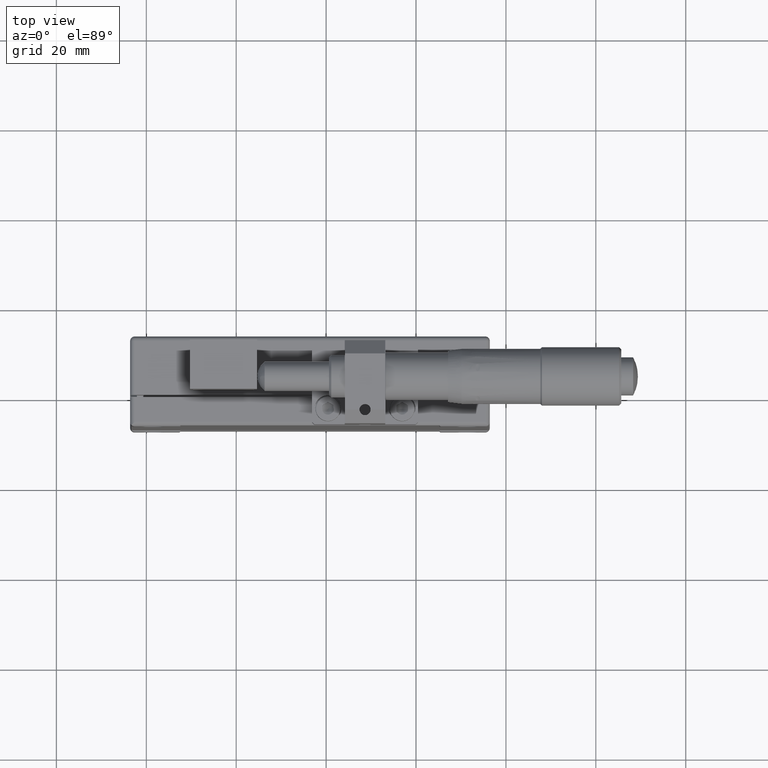
[diagram: clean part render]
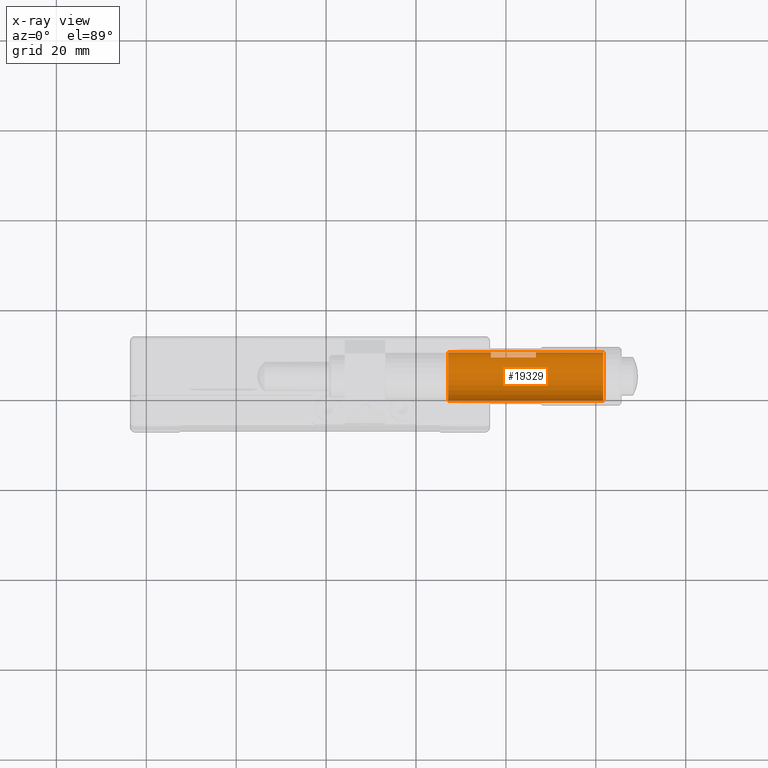
[diagram: x-ray — body ghosted, one internal face saturated and labeled with its STEP entity id]
A machine part, top view, then the same camera in x-ray: the body is ghosted and one INTERNAL B-rep face — a face not visible from any outside direction — is saturated and labeled: STEP entity #19329.
In plain terms, the highlighted cylindrical surface (edge-blend (fillet) strip) has radius 5.35 mm, axis along (-1, 0, -0).
Its self-contained STEP definition (entity closure, byte-faithful):
#33 = DIRECTION ( 'NONE',  ( 1.000000000000000000, -0.000000000000000000, 1.020425574104003999E-16 ) ) ;
#1335 = CARTESIAN_POINT ( 'NONE',  ( 36.65176578642597605, 3.444701483818199961, 57.00000000000000000 ) ) ;
#2324 = CIRCLE ( 'NONE', #19991, 5.349999999999998757 ) ;
#2337 = EDGE_CURVE ( 'NONE', #24443, #31165, #9769, .T. ) ;
#2688 = DIRECTION ( 'NONE',  ( -1.000000000000000000, 1.020425574104003999E-16, -1.020425574104003999E-16 ) ) ;
#3971 = CARTESIAN_POINT ( 'NONE',  ( 61.65144876737939938, 3.444701483818194632, 57.00000000000000000 ) ) ;
#4158 = EDGE_CURVE ( 'NONE', #18216, #25756, #31118, .T. ) ;
#4557 = VECTOR ( 'NONE', #20300, 1000.000000000000000 ) ;
#4937 = CARTESIAN_POINT ( 'NONE',  ( 61.65144876737939938, 8.794701483818190724, 57.00000000000000000 ) ) ;
#5059 = CARTESIAN_POINT ( 'NONE',  ( 36.65176578642599026, 8.748164321402104093, 56.29588216159049807 ) ) ;
#5072 = CARTESIAN_POINT ( 'NONE',  ( 36.65176578642598315, 7.720765565923919382, 53.78475880131437492 ) ) ;
#5167 = AXIS2_PLACEMENT_3D ( 'NONE', #6210, #18371, #28007 ) ;
#5593 = ORIENTED_EDGE ( 'NONE', *, *, #17957, .T. ) ;
#6210 = CARTESIAN_POINT ( 'NONE',  ( 27.15144876737934965, 3.444701483818194632, 57.00000000000000000 ) ) ;
#6335 = DIRECTION ( 'NONE',  ( 0.000000000000000000, 1.000000000000000000, 0.000000000000000000 ) ) ;
#6687 = DIRECTION ( 'NONE',  ( 2.593979029498029835E-15, 1.000000000000000000, 0.000000000000000000 ) ) ;
#7310 = DIRECTION ( 'NONE',  ( 0.000000000000000000, 1.000000000000000000, 0.000000000000000000 ) ) ;
#7343 = CARTESIAN_POINT ( 'NONE',  ( 15.29493842410649940, -1.905298516181800128, 57.00000000000000000 ) ) ;
#8037 = VERTEX_POINT ( 'NONE', #18214 ) ;
#9277 = AXIS2_PLACEMENT_3D ( 'NONE', #1335, #30231, #6687 ) ;
#9467 = AXIS2_PLACEMENT_3D ( 'NONE', #3971, #27974, #6335 ) ;
#9547 = FACE_OUTER_BOUND ( 'NONE', #26794, .T. ) ;
#9769 = CIRCLE ( 'NONE', #9277, 5.349999999999998757 ) ;
#10666 = CARTESIAN_POINT ( 'NONE',  ( 15.29493842410651361, 7.720765565923989548, 53.78475880131446729 ) ) ;
#11743 = CIRCLE ( 'NONE', #5167, 5.349999999999998757 ) ;
#11768 = ORIENTED_EDGE ( 'NONE', *, *, #13701, .T. ) ;
#11838 = CARTESIAN_POINT ( 'NONE',  ( 61.65144876737939938, -1.905298516181805235, 57.00000000000000000 ) ) ;
#13076 = AXIS2_PLACEMENT_3D ( 'NONE', #21843, #24232, #7310 ) ;
#13701 = EDGE_CURVE ( 'NONE', #27326, #16020, #11743, .T. ) ;
#13933 = EDGE_LOOP ( 'NONE', ( #15105, #27599, #5593, #25081 ) ) ;
#14282 = DIRECTION ( 'NONE',  ( -1.000000000000000000, 3.191845013324920229E-15, 2.209802036947752562E-15 ) ) ;
#15105 = ORIENTED_EDGE ( 'NONE', *, *, #19292, .T. ) ;
#16020 = VERTEX_POINT ( 'NONE', #22048 ) ;
#17084 = VECTOR ( 'NONE', #2688, 1000.000000000000000 ) ;
#17957 = EDGE_CURVE ( 'NONE', #8037, #31165, #29605, .T. ) ;
#18214 = CARTESIAN_POINT ( 'NONE',  ( 46.65176578642599736, 7.720765565923989548, 53.78475880131446729 ) ) ;
#18216 = VERTEX_POINT ( 'NONE', #4937 ) ;
#18371 = DIRECTION ( 'NONE',  ( -1.000000000000000000, 0.000000000000000000, -1.020425574104003999E-16 ) ) ;
#19292 = EDGE_CURVE ( 'NONE', #24443, #26278, #26747, .T. ) ;
#19329 = ADVANCED_FACE ( 'NONE', ( #26428, #9547 ), #21553, .F. ) ;
#19378 = CARTESIAN_POINT ( 'NONE',  ( 46.65176578642600447, 8.748164321402116528, 56.29588216159057623 ) ) ;
#19875 = ORIENTED_EDGE ( 'NONE', *, *, #24426, .T. ) ;
#19991 = AXIS2_PLACEMENT_3D ( 'NONE', #22171, #14282, #29109 ) ;
#20032 = EDGE_CURVE ( 'NONE', #25756, #16020, #28971, .T. ) ;
#20300 = DIRECTION ( 'NONE',  ( -1.000000000000000000, 0.000000000000000000, -1.020425574104003999E-16 ) ) ;
#20678 = CARTESIAN_POINT ( 'NONE',  ( 27.15144876737934965, 8.794701483818199605, 57.00000000000000000 ) ) ;
#21553 = CYLINDRICAL_SURFACE ( 'NONE', #13076, 5.349999999999998757 ) ;
#21697 = CARTESIAN_POINT ( 'NONE',  ( 15.29493842410649584, 8.748164321402116528, 56.29588216159057623 ) ) ;
#21843 = CARTESIAN_POINT ( 'NONE',  ( 15.29493842410649940, 3.444701483818199961, 57.00000000000000000 ) ) ;
#21873 = DIRECTION ( 'NONE',  ( -1.000000000000000000, 1.020425574104003999E-16, -1.020425574104003999E-16 ) ) ;
#22048 = CARTESIAN_POINT ( 'NONE',  ( 27.15144876737934965, -1.905298516181805235, 57.00000000000000000 ) ) ;
#22171 = CARTESIAN_POINT ( 'NONE',  ( 46.65176578642598315, 3.444701483818199961, 57.00000000000000000 ) ) ;
#24140 = VECTOR ( 'NONE', #33, 1000.000000000000000 ) ;
#24203 = CARTESIAN_POINT ( 'NONE',  ( 15.29493842410649940, 8.794701483818199605, 57.00000000000000000 ) ) ;
#24232 = DIRECTION ( 'NONE',  ( -1.000000000000000000, 0.000000000000000000, -1.020425574104003999E-16 ) ) ;
#24426 = EDGE_CURVE ( 'NONE', #18216, #27326, #27027, .T. ) ;
#24443 = VERTEX_POINT ( 'NONE', #5059 ) ;
#25081 = ORIENTED_EDGE ( 'NONE', *, *, #2337, .F. ) ;
#25680 = ORIENTED_EDGE ( 'NONE', *, *, #4158, .F. ) ;
#25756 = VERTEX_POINT ( 'NONE', #11838 ) ;
#26278 = VERTEX_POINT ( 'NONE', #19378 ) ;
#26428 = FACE_BOUND ( 'NONE', #13933, .T. ) ;
#26747 = LINE ( 'NONE', #21697, #24140 ) ;
#26794 = EDGE_LOOP ( 'NONE', ( #29926, #25680, #19875, #11768 ) ) ;
#27027 = LINE ( 'NONE', #24203, #17084 ) ;
#27326 = VERTEX_POINT ( 'NONE', #20678 ) ;
#27599 = ORIENTED_EDGE ( 'NONE', *, *, #30148, .T. ) ;
#27974 = DIRECTION ( 'NONE',  ( -1.000000000000000000, 0.000000000000000000, -1.020425574104003999E-16 ) ) ;
#28007 = DIRECTION ( 'NONE',  ( 0.000000000000000000, 1.000000000000000000, 0.000000000000000000 ) ) ;
#28971 = LINE ( 'NONE', #7343, #30940 ) ;
#29109 = DIRECTION ( 'NONE',  ( 2.593979029498029835E-15, 1.000000000000000000, 0.000000000000000000 ) ) ;
#29605 = LINE ( 'NONE', #10666, #4557 ) ;
#29926 = ORIENTED_EDGE ( 'NONE', *, *, #20032, .F. ) ;
#30148 = EDGE_CURVE ( 'NONE', #26278, #8037, #2324, .T. ) ;
#30231 = DIRECTION ( 'NONE',  ( -1.000000000000000000, 3.191845013324920229E-15, 2.209802036947752562E-15 ) ) ;
#30940 = VECTOR ( 'NONE', #21873, 1000.000000000000000 ) ;
#31118 = CIRCLE ( 'NONE', #9467, 5.349999999999998757 ) ;
#31165 = VERTEX_POINT ( 'NONE', #5072 ) ;